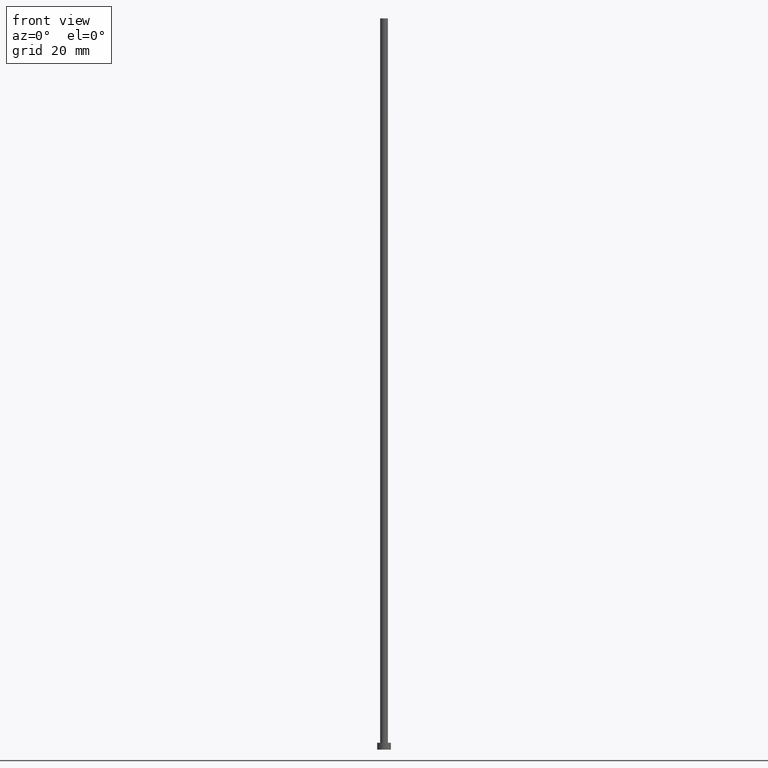
[diagram: clean part render]
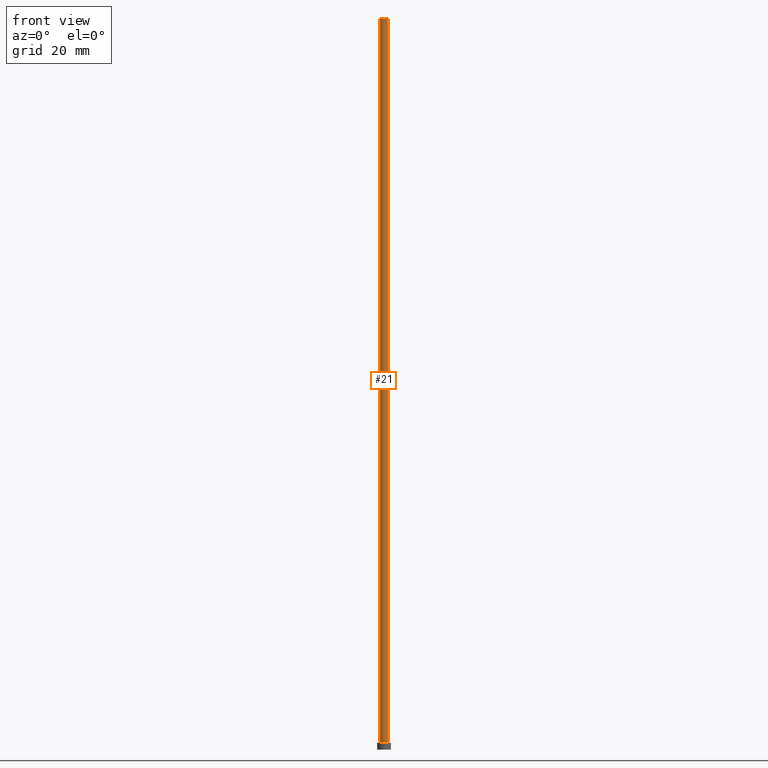
[diagram: same view with one face highlighted and labeled with its STEP entity id]
A machine part, front view. The second image highlights one B-rep face of the part: STEP entity #21.
In plain terms, the highlighted cylindrical surface (edge-blend (fillet) strip) has radius 0.85 mm, axis along (-0, -0, -1).
Its self-contained STEP definition (entity closure, byte-faithful):
#4 = CARTESIAN_POINT ( 'NONE',  ( 0.8499999999999999778, 1.040949779275250140E-16, 160.0000000000000000 ) ) ;
#15 = VERTEX_POINT ( 'NONE', #95 ) ;
#18 = ORIENTED_EDGE ( 'NONE', *, *, #160, .F. ) ;
#21 = ADVANCED_FACE ( 'NONE', ( #75 ), #139, .T. ) ;
#26 = AXIS2_PLACEMENT_3D ( 'NONE', #249, #251, #45 ) ;
#33 = ORIENTED_EDGE ( 'NONE', *, *, #146, .T. ) ;
#45 = DIRECTION ( 'NONE',  ( 1.000000000000000000, 0.000000000000000000, 0.000000000000000000 ) ) ;
#46 = VECTOR ( 'NONE', #97, 1000.000000000000000 ) ;
#51 = ORIENTED_EDGE ( 'NONE', *, *, #243, .F. ) ;
#53 = EDGE_CURVE ( 'NONE', #90, #255, #60, .T. ) ;
#60 = CIRCLE ( 'NONE', #176, 0.8499999999999999778 ) ;
#66 = CARTESIAN_POINT ( 'NONE',  ( 0.8499999999999999778, 1.040949779275250140E-16, 1.500000000000000000 ) ) ;
#75 = FACE_OUTER_BOUND ( 'NONE', #254, .T. ) ;
#76 = VERTEX_POINT ( 'NONE', #4 ) ;
#80 = CARTESIAN_POINT ( 'NONE',  ( -0.8499999999999999778, 0.000000000000000000, 160.0000000000000000 ) ) ;
#90 = VERTEX_POINT ( 'NONE', #218 ) ;
#93 = DIRECTION ( 'NONE',  ( -1.000000000000000000, 0.000000000000000000, 0.000000000000000000 ) ) ;
#95 = CARTESIAN_POINT ( 'NONE',  ( -0.8499999999999999778, 0.000000000000000000, 160.0000000000000000 ) ) ;
#97 = DIRECTION ( 'NONE',  ( -0.000000000000000000, -0.000000000000000000, -1.000000000000000000 ) ) ;
#98 = LINE ( 'NONE', #80, #121 ) ;
#117 = CARTESIAN_POINT ( 'NONE',  ( 0.000000000000000000, 0.000000000000000000, 160.0000000000000000 ) ) ;
#120 = LINE ( 'NONE', #205, #46 ) ;
#121 = VECTOR ( 'NONE', #201, 1000.000000000000000 ) ;
#124 = AXIS2_PLACEMENT_3D ( 'NONE', #117, #194, #93 ) ;
#139 = CYLINDRICAL_SURFACE ( 'NONE', #124, 0.8499999999999999778 ) ;
#140 = CIRCLE ( 'NONE', #26, 0.8499999999999999778 ) ;
#146 = EDGE_CURVE ( 'NONE', #15, #90, #98, .T. ) ;
#160 = EDGE_CURVE ( 'NONE', #76, #255, #120, .T. ) ;
#175 = ORIENTED_EDGE ( 'NONE', *, *, #53, .T. ) ;
#176 = AXIS2_PLACEMENT_3D ( 'NONE', #180, #197, #181 ) ;
#180 = CARTESIAN_POINT ( 'NONE',  ( 0.000000000000000000, 0.000000000000000000, 1.500000000000000000 ) ) ;
#181 = DIRECTION ( 'NONE',  ( 1.000000000000000000, 0.000000000000000000, 0.000000000000000000 ) ) ;
#194 = DIRECTION ( 'NONE',  ( -0.000000000000000000, -0.000000000000000000, -1.000000000000000000 ) ) ;
#197 = DIRECTION ( 'NONE',  ( 0.000000000000000000, 0.000000000000000000, 1.000000000000000000 ) ) ;
#201 = DIRECTION ( 'NONE',  ( -0.000000000000000000, -0.000000000000000000, -1.000000000000000000 ) ) ;
#205 = CARTESIAN_POINT ( 'NONE',  ( 0.8499999999999999778, 1.040949779275250140E-16, 160.0000000000000000 ) ) ;
#218 = CARTESIAN_POINT ( 'NONE',  ( -0.8499999999999999778, 0.000000000000000000, 1.500000000000000000 ) ) ;
#243 = EDGE_CURVE ( 'NONE', #15, #76, #140, .T. ) ;
#249 = CARTESIAN_POINT ( 'NONE',  ( 0.000000000000000000, 0.000000000000000000, 160.0000000000000000 ) ) ;
#251 = DIRECTION ( 'NONE',  ( 0.000000000000000000, 0.000000000000000000, 1.000000000000000000 ) ) ;
#254 = EDGE_LOOP ( 'NONE', ( #18, #51, #33, #175 ) ) ;
#255 = VERTEX_POINT ( 'NONE', #66 ) ;